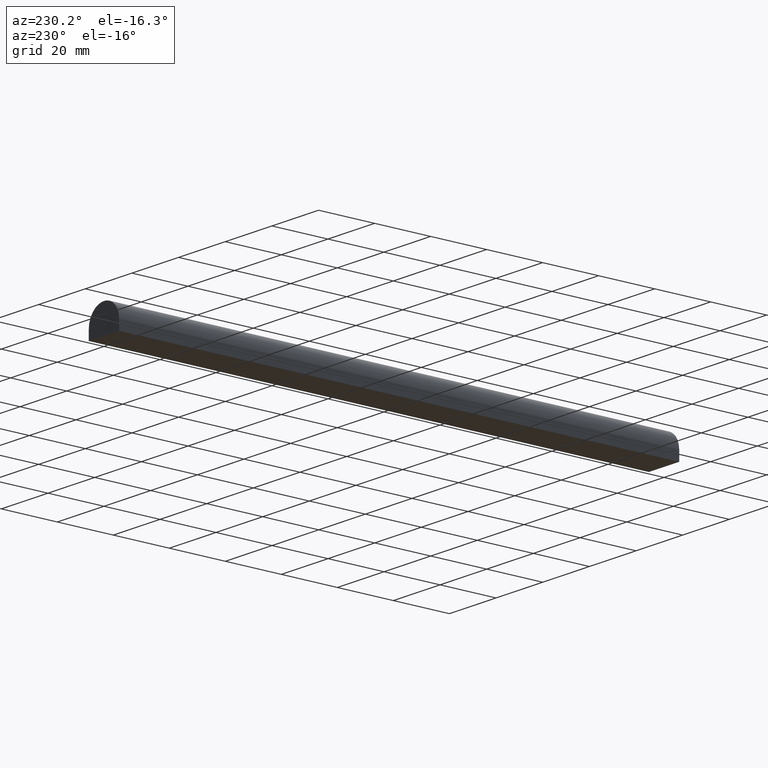
[diagram: clean part render]
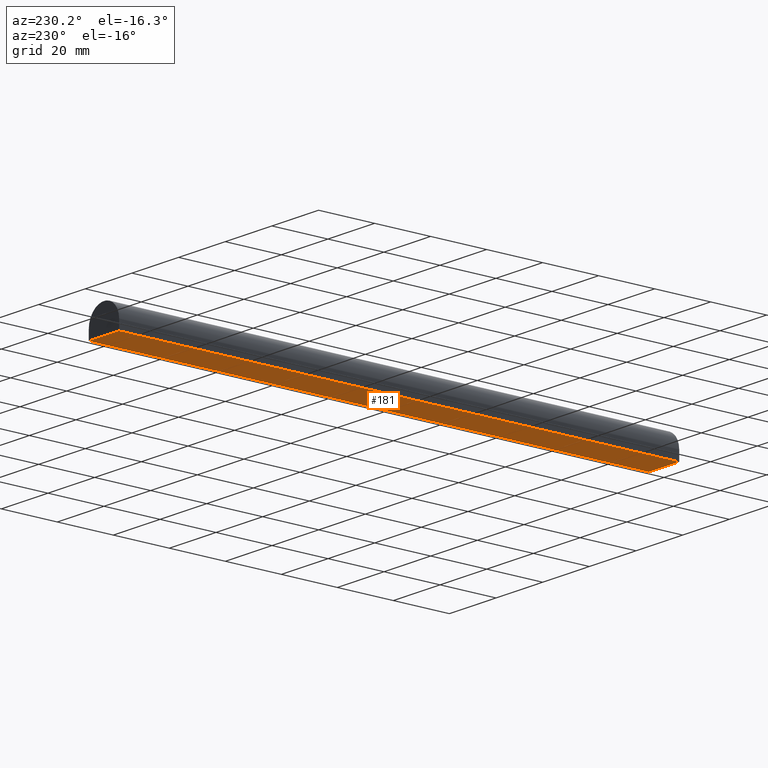
[diagram: same view with one face highlighted and labeled with its STEP entity id]
A machine part, auxiliary view. The second image highlights one B-rep face of the part: STEP entity #181.
In plain terms, the highlighted planar face has unit normal (0, 0, -1).
Its self-contained STEP definition (entity closure, byte-faithful):
#1 = VERTEX_POINT ( 'NONE', #234 ) ;
#3 = CARTESIAN_POINT ( 'NONE',  ( -6.500000000000000000, 1000.000000000000000, -5.000000000000000000 ) ) ;
#5 = CARTESIAN_POINT ( 'NONE',  ( 6.500000000000000000, 1000.000000000000000, -5.000000000000000000 ) ) ;
#6 = PLANE ( 'NONE',  #60 ) ;
#9 = VECTOR ( 'NONE', #52, 1000.000000000000000 ) ;
#10 = CARTESIAN_POINT ( 'NONE',  ( 0.0000000000000000000, 0.0000000000000000000, -5.000000000000000000 ) ) ;
#21 = CARTESIAN_POINT ( 'NONE',  ( -6.500000000000000000, 1000.000000000000000, -5.000000000000000000 ) ) ;
#33 = ORIENTED_EDGE ( 'NONE', *, *, #112, .T. ) ;
#36 = CARTESIAN_POINT ( 'NONE',  ( 6.500000000000000000, 200.0000000000000000, -5.000000000000000000 ) ) ;
#39 = EDGE_CURVE ( 'NONE', #1, #97, #108, .T. ) ;
#52 = DIRECTION ( 'NONE',  ( 0.0000000000000000000, -1.000000000000000000, 0.0000000000000000000 ) ) ;
#53 = VECTOR ( 'NONE', #90, 1000.000000000000000 ) ;
#60 = AXIS2_PLACEMENT_3D ( 'NONE', #21, #111, #189 ) ;
#63 = LINE ( 'NONE', #3, #9 ) ;
#71 = CARTESIAN_POINT ( 'NONE',  ( 0.0000000000000000000, 200.0000000000000000, -5.000000000000000000 ) ) ;
#73 = ORIENTED_EDGE ( 'NONE', *, *, #101, .F. ) ;
#74 = CARTESIAN_POINT ( 'NONE',  ( 6.500000000000000000, 0.0000000000000000000, -5.000000000000000000 ) ) ;
#76 = DIRECTION ( 'NONE',  ( 0.0000000000000000000, -1.000000000000000000, 0.0000000000000000000 ) ) ;
#80 = VECTOR ( 'NONE', #231, 1000.000000000000000 ) ;
#88 = LINE ( 'NONE', #5, #222 ) ;
#90 = DIRECTION ( 'NONE',  ( 1.000000000000000000, -0.0000000000000000000, -0.0000000000000000000 ) ) ;
#92 = EDGE_LOOP ( 'NONE', ( #146, #73, #33, #115 ) ) ;
#97 = VERTEX_POINT ( 'NONE', #74 ) ;
#101 = EDGE_CURVE ( 'NONE', #199, #1, #63, .T. ) ;
#108 = LINE ( 'NONE', #10, #80 ) ;
#111 = DIRECTION ( 'NONE',  ( 0.0000000000000000000, 0.0000000000000000000, -1.000000000000000000 ) ) ;
#112 = EDGE_CURVE ( 'NONE', #199, #184, #154, .T. ) ;
#115 = ORIENTED_EDGE ( 'NONE', *, *, #118, .T. ) ;
#118 = EDGE_CURVE ( 'NONE', #184, #97, #88, .T. ) ;
#127 = CARTESIAN_POINT ( 'NONE',  ( -6.500000000000000000, 200.0000000000000000, -5.000000000000000000 ) ) ;
#146 = ORIENTED_EDGE ( 'NONE', *, *, #39, .F. ) ;
#154 = LINE ( 'NONE', #71, #53 ) ;
#181 = ADVANCED_FACE ( 'NONE', ( #220 ), #6, .T. ) ;
#184 = VERTEX_POINT ( 'NONE', #36 ) ;
#189 = DIRECTION ( 'NONE',  ( -1.000000000000000000, 0.0000000000000000000, 0.0000000000000000000 ) ) ;
#199 = VERTEX_POINT ( 'NONE', #127 ) ;
#220 = FACE_OUTER_BOUND ( 'NONE', #92, .T. ) ;
#222 = VECTOR ( 'NONE', #76, 1000.000000000000000 ) ;
#231 = DIRECTION ( 'NONE',  ( 1.000000000000000000, -0.0000000000000000000, -0.0000000000000000000 ) ) ;
#234 = CARTESIAN_POINT ( 'NONE',  ( -6.500000000000000000, 0.0000000000000000000, -5.000000000000000000 ) ) ;